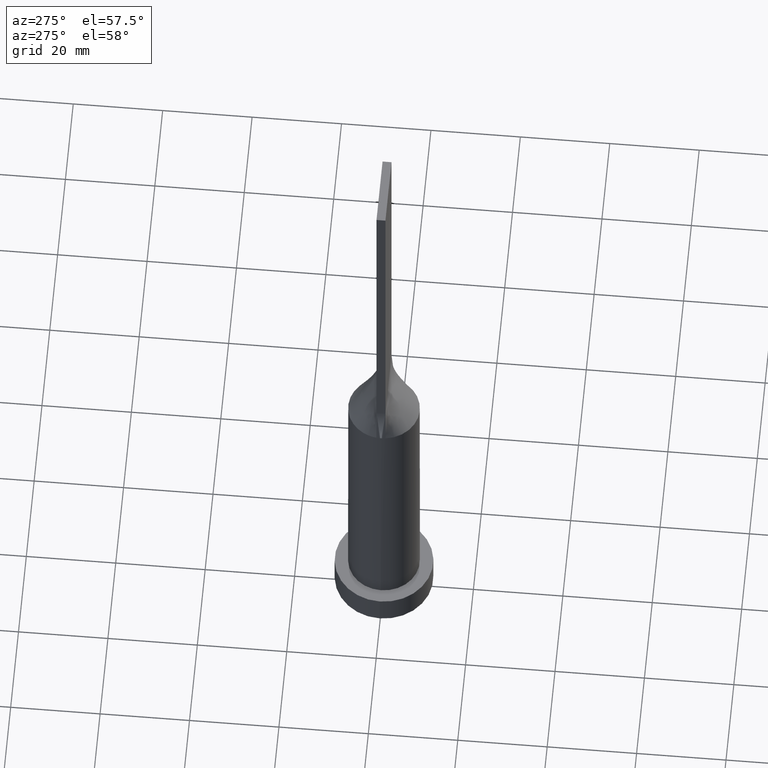
[diagram: clean part render]
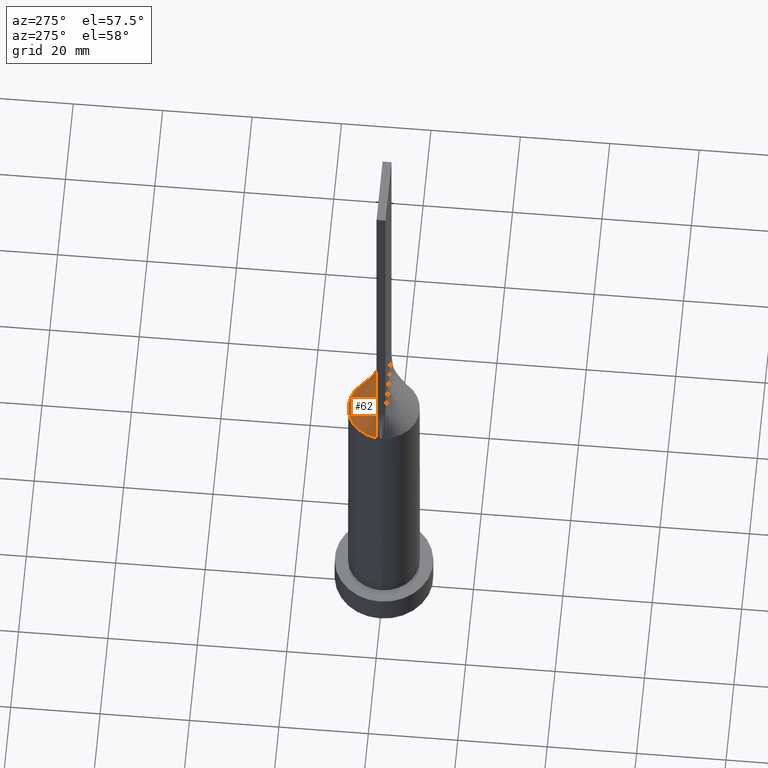
[diagram: same view with one face highlighted and labeled with its STEP entity id]
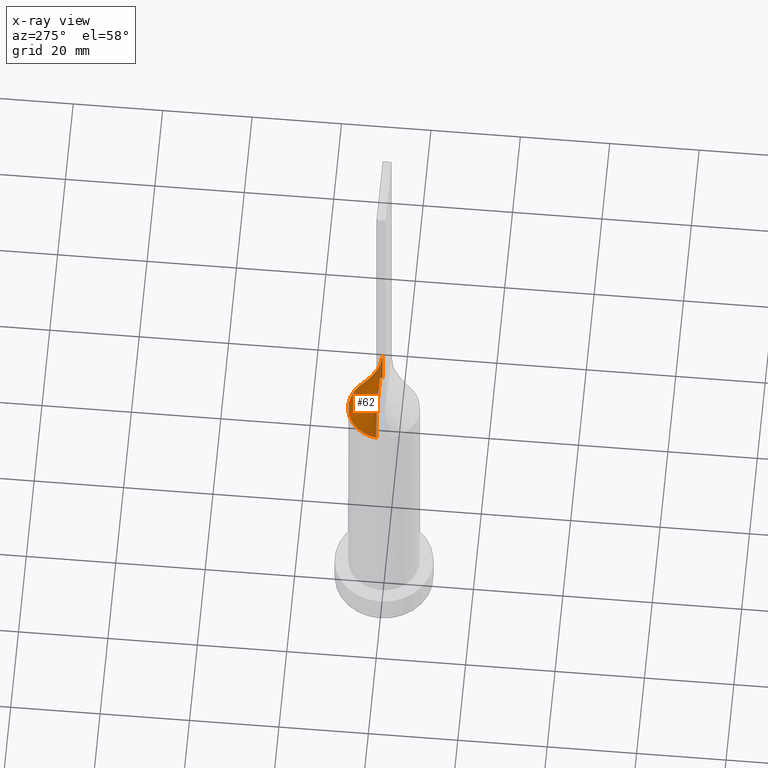
[diagram: x-ray of the same camera — body ghosted, the highlighted face saturated]
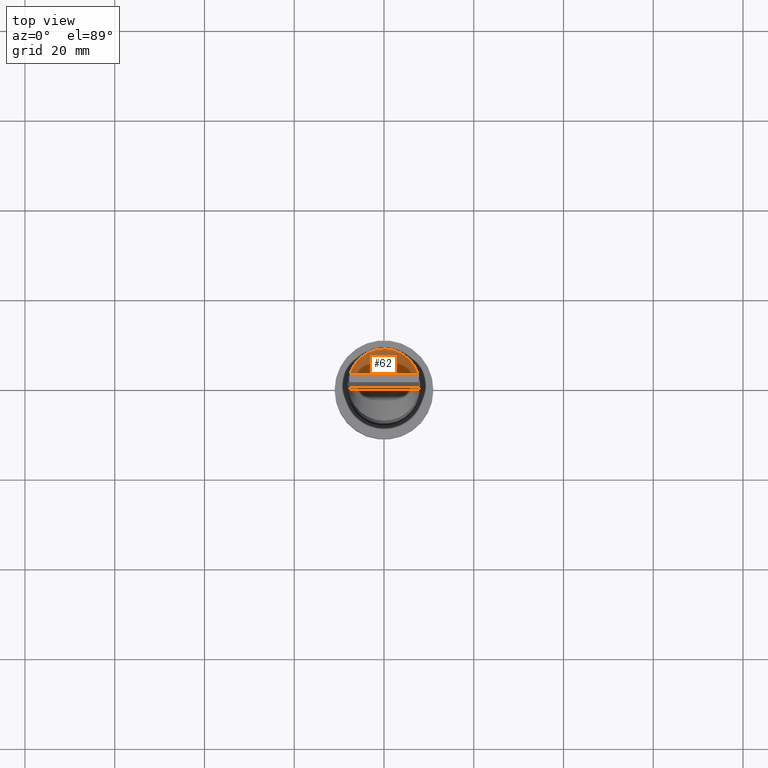
[diagram: same view with one face highlighted and labeled with its STEP entity id]
A machine part, auxiliary view. The second image highlights one B-rep face of the part: STEP entity #62.
The next image is the same camera in x-ray: the body ghosted, the highlighted face saturated — about 6% of this face is hidden behind the body in this view.
A second angle (top view) of the same face is appended — the face is thin or edge-on in the first view.
In plain terms, the highlighted face is a freeform B-spline surface patch.
Its self-contained STEP definition (entity closure, byte-faithful):
#4 = CARTESIAN_POINT ( 'NONE',  ( 7.104166666666666963, 1.000000000000000000, 79.99999999999998579 ) ) ;
#6 = ORIENTED_EDGE ( 'NONE', *, *, #456, .T. ) ;
#9 = CARTESIAN_POINT ( 'NONE',  ( -0.5861720261543129640, 7.999999999999998224, 69.99999999999998579 ) ) ;
#12 = CARTESIAN_POINT ( 'NONE',  ( -7.849610172922081297, 1.679519592204999023, 70.00000000000000000 ) ) ;
#15 = CARTESIAN_POINT ( 'NONE',  ( 2.847317194822259534, 7.497028652483948008, 70.00000000000000000 ) ) ;
#16 = ORIENTED_EDGE ( 'NONE', *, *, #266, .F. ) ;
#18 = CARTESIAN_POINT ( 'NONE',  ( 7.192469010134847629, 3.526369025759696907, 70.00000000000000000 ) ) ;
#22 = CARTESIAN_POINT ( 'NONE',  ( 6.994548530637815453, 3.908833842696238570, 70.00000000000002842 ) ) ;
#45 = EDGE_CURVE ( 'NONE', #508, #52, #146, .T. ) ;
#52 = VERTEX_POINT ( 'NONE', #310 ) ;
#54 = CARTESIAN_POINT ( 'NONE',  ( -3.552083333333332593, 1.000000000000000000, 80.00000000000001421 ) ) ;
#56 = CARTESIAN_POINT ( 'NONE',  ( -3.862537548001455878, 7.028047916340264045, 70.00000000000000000 ) ) ;
#60 = CARTESIAN_POINT ( 'NONE',  ( 3.229166666666668295, 1.000000000000000000, 80.00000000000001421 ) ) ;
#62 = ADVANCED_FACE ( 'NONE', ( #249 ), #152, .T. ) ;
#65 = CARTESIAN_POINT ( 'NONE',  ( -0.3229166666666646868, 1.000000000000000000, 79.99999999999998579 ) ) ;
#66 = LINE ( 'NONE', #219, #408 ) ;
#67 = CARTESIAN_POINT ( 'NONE',  ( 4.333237558274722900, 6.745559271922132893, 70.00000000000001421 ) ) ;
#77 = CARTESIAN_POINT ( 'NONE',  ( -6.226863775955933100, 5.046530946333157353, 70.00000000000001421 ) ) ;
#78 = CARTESIAN_POINT ( 'NONE',  ( -7.934264564332944580, 1.023776086464161406, 70.00000000000000000 ) ) ;
#96 = EDGE_CURVE ( 'NONE', #640, #596, #499, .T. ) ;
#98 = CARTESIAN_POINT ( 'NONE',  ( -2.302877821226935851, 7.683241396761610886, 70.00000000000001421 ) ) ;
#101 = CARTESIAN_POINT ( 'NONE',  ( 7.849610172922079521, 1.679519592204998801, 70.00000000000000000 ) ) ;
#104 = CARTESIAN_POINT ( 'NONE',  ( 6.226863775955932212, 5.046530946333158241, 70.00000000000002842 ) ) ;
#108 = CARTESIAN_POINT ( 'NONE',  ( -4.520833333333332149, 1.000000000000000000, 80.00000000000001421 ) ) ;
#117 = CARTESIAN_POINT ( 'NONE',  ( 7.934252830235720033, 1.023774570959714802, 70.00000000000000000 ) ) ;
#119 = ORIENTED_EDGE ( 'NONE', *, *, #45, .F. ) ;
#121 = CARTESIAN_POINT ( 'NONE',  ( -2.302877821226935851, 7.683241396761610886, 70.00000000000001421 ) ) ;
#146 = LINE ( 'NONE', #388, #347 ) ;
#148 = DIRECTION ( 'NONE',  ( -0.01841911599500831165, -0.002376660128388051550, 0.9998275289531671772 ) ) ;
#150 = CARTESIAN_POINT ( 'NONE',  ( 2.847317194822259534, 7.497028652483948008, 70.00000000000000000 ) ) ;
#152 = B_SPLINE_SURFACE_WITH_KNOTS ( 'NONE', 3, 1, ( 
 ( #510, #170 ),
 ( #101, #4 ),
 ( #256, #602 ),
 ( #599, #448 ),
 ( #493, #412 ),
 ( #203, #252 ),
 ( #104, #399 ),
 ( #306, #587 ),
 ( #500, #60 ),
 ( #67, #403 ),
 ( #544, #453 ),
 ( #150, #450 ),
 ( #211, #407 ),
 ( #641, #505 ),
 ( #346, #594 ),
 ( #9, #65 ),
 ( #161, #496 ),
 ( #98, #353 ),
 ( #547, #638 ),
 ( #56, #301 ),
 ( #591, #320 ),
 ( #361, #214 ),
 ( #540, #54 ),
 ( #166, #356 ),
 ( #550, #108 ),
 ( #314, #556 ),
 ( #207, #262 ),
 ( #156, #458 ),
 ( #12, #216 ),
 ( #350, #415 ) ),
 .UNSPECIFIED., .F., .F., .F.,
 ( 4, 2, 2, 2, 2, 2, 2, 2, 2, 2, 2, 2, 2, 2, 4 ),
 ( 2, 2 ),
 ( 0.000000000000000000, 0.1250000000000000000, 0.1875000000000000000, 0.2500000000000000000, 0.3125000000000000000, 0.3750000000000000000, 0.4375000000000000000, 0.5000000000000000000, 0.5625000000000000000, 0.6250000000000000000, 0.6875000000000000000, 0.7500000000000000000, 0.8125000000000000000, 0.8750000000000000000, 1.000000000000000000 ),
 ( 0.000000000000000000, 1.000000000000000000 ),
 .UNSPECIFIED. ) ;
#156 = CARTESIAN_POINT ( 'NONE',  ( -7.675166908885236339, 2.399868494543667907, 70.00000000000000000 ) ) ;
#161 = CARTESIAN_POINT ( 'NONE',  ( -1.172177046651856402, 7.934824862069282503, 70.00000000000002842 ) ) ;
#166 = CARTESIAN_POINT ( 'NONE',  ( -6.226863775955933100, 5.046530946333157353, 70.00000000000001421 ) ) ;
#170 = CARTESIAN_POINT ( 'NONE',  ( 7.750000000000000000, 1.000000000000000000, 80.00000000000000000 ) ) ;
#174 = CARTESIAN_POINT ( 'NONE',  ( 5.562660223239392465, 5.770452176164421410, 70.00000000000001421 ) ) ;
#183 = CARTESIAN_POINT ( 'NONE',  ( -5.562660223239390689, 5.770452176164420521, 70.00000000000002842 ) ) ;
#203 = CARTESIAN_POINT ( 'NONE',  ( 6.511821874825409751, 4.668925682402791821, 70.00000000000001421 ) ) ;
#206 = EDGE_LOOP ( 'NONE', ( #324, #6, #119, #16 ) ) ;
#207 = CARTESIAN_POINT ( 'NONE',  ( -7.192469010134845853, 3.526369025759696019, 69.99999999999998579 ) ) ;
#211 = CARTESIAN_POINT ( 'NONE',  ( 2.302877821226935406, 7.683241396761612663, 70.00000000000002842 ) ) ;
#214 = CARTESIAN_POINT ( 'NONE',  ( -3.229166666666665186, 1.000000000000000000, 80.00000000000001421 ) ) ;
#216 = CARTESIAN_POINT ( 'NONE',  ( -7.104166666666667851, 1.000000000000000000, 80.00000000000001421 ) ) ;
#219 = CARTESIAN_POINT ( 'NONE',  ( -7.842111466536100473, 1.011885350520786098, 75.00000000000001421 ) ) ;
#220 = CARTESIAN_POINT ( 'NONE',  ( -0.5861720261543129640, 7.999999999999998224, 69.99999999999998579 ) ) ;
#224 = CARTESIAN_POINT ( 'NONE',  ( 6.511821874825409751, 4.668925682402791821, 70.00000000000001421 ) ) ;
#227 = CARTESIAN_POINT ( 'NONE',  ( 2.302877821226935406, 7.683241396761612663, 70.00000000000002842 ) ) ;
#231 = CARTESIAN_POINT ( 'NONE',  ( 4.333237558274722900, 6.745559271922132893, 70.00000000000001421 ) ) ;
#238 = CARTESIAN_POINT ( 'NONE',  ( 7.934252830235720033, 1.023774570959714802, 70.00000000000000000 ) ) ;
#242 = DIRECTION ( 'NONE',  ( -1.000000000000000000, -0.000000000000000000, -0.000000000000000000 ) ) ;
#249 = FACE_OUTER_BOUND ( 'NONE', #206, .T. ) ;
#252 = CARTESIAN_POINT ( 'NONE',  ( 4.520833333333334814, 1.000000000000000000, 80.00000000000001421 ) ) ;
#256 = CARTESIAN_POINT ( 'NONE',  ( 7.675166908885234562, 2.399868494543665243, 69.99999999999997158 ) ) ;
#262 = CARTESIAN_POINT ( 'NONE',  ( -5.489583333333333925, 1.000000000000000000, 80.00000000000001421 ) ) ;
#266 = EDGE_CURVE ( 'NONE', #640, #508, #439, .T. ) ;
#270 = CARTESIAN_POINT ( 'NONE',  ( 7.849610172922079521, 1.679519592204998801, 70.00000000000000000 ) ) ;
#278 = CARTESIAN_POINT ( 'NONE',  ( -5.183259239191613688, 6.116644610143057825, 69.99999999999998579 ) ) ;
#301 = CARTESIAN_POINT ( 'NONE',  ( -2.260416666666664742, 1.000000000000000000, 79.99999999999998579 ) ) ;
#306 = CARTESIAN_POINT ( 'NONE',  ( 5.562660223239392465, 5.770452176164421410, 70.00000000000001421 ) ) ;
#310 = CARTESIAN_POINT ( 'NONE',  ( -7.750000000000000000, 1.000000000000000000, 80.00000000000000000 ) ) ;
#314 = CARTESIAN_POINT ( 'NONE',  ( -6.994548530637814565, 3.908833842696238570, 70.00000000000001421 ) ) ;
#320 = CARTESIAN_POINT ( 'NONE',  ( -2.583333333333331705, 1.000000000000000000, 80.00000000000000000 ) ) ;
#324 = ORIENTED_EDGE ( 'NONE', *, *, #96, .T. ) ;
#326 = CARTESIAN_POINT ( 'NONE',  ( -1.172177046651856402, 7.934824862069282503, 70.00000000000002842 ) ) ;
#328 = CARTESIAN_POINT ( 'NONE',  ( 0.5861720261543130750, 7.999999999999998224, 70.00000000000001421 ) ) ;
#346 = CARTESIAN_POINT ( 'NONE',  ( 0.5861720261543130750, 7.999999999999998224, 70.00000000000001421 ) ) ;
#347 = VECTOR ( 'NONE', #242, 1000.000000000000000 ) ;
#350 = CARTESIAN_POINT ( 'NONE',  ( -7.934222933072200945, 1.023770701041572195, 70.00000000000000000 ) ) ;
#353 = CARTESIAN_POINT ( 'NONE',  ( -1.291666666666664742, 1.000000000000000000, 79.99999999999998579 ) ) ;
#356 = CARTESIAN_POINT ( 'NONE',  ( -4.197916666666666075, 1.000000000000000000, 80.00000000000001421 ) ) ;
#361 = CARTESIAN_POINT ( 'NONE',  ( -5.183259239191613688, 6.116644610143057825, 69.99999999999998579 ) ) ;
#362 = VECTOR ( 'NONE', #148, 1000.000000000000114 ) ;
#367 = CARTESIAN_POINT ( 'NONE',  ( -7.934264564332944580, 1.023776086464161406, 70.00000000000000000 ) ) ;
#369 = CARTESIAN_POINT ( 'NONE',  ( -7.675166908885236339, 2.399868494543667907, 70.00000000000000000 ) ) ;
#373 = CARTESIAN_POINT ( 'NONE',  ( 6.226863775955932212, 5.046530946333158241, 70.00000000000002842 ) ) ;
#376 = CARTESIAN_POINT ( 'NONE',  ( -7.849610172922081297, 1.679519592204999023, 70.00000000000000000 ) ) ;
#388 = CARTESIAN_POINT ( 'NONE',  ( -7.750000000000000000, 1.000000000000000000, 80.00000000000000000 ) ) ;
#399 = CARTESIAN_POINT ( 'NONE',  ( 4.197916666666668739, 1.000000000000000000, 80.00000000000001421 ) ) ;
#403 = CARTESIAN_POINT ( 'NONE',  ( 2.583333333333335258, 1.000000000000000000, 80.00000000000000000 ) ) ;
#407 = CARTESIAN_POINT ( 'NONE',  ( 1.291666666666668739, 1.000000000000000000, 79.99999999999998579 ) ) ;
#408 = VECTOR ( 'NONE', #611, 1000.000000000000114 ) ;
#412 = CARTESIAN_POINT ( 'NONE',  ( 5.166666666666667851, 1.000000000000000000, 80.00000000000000000 ) ) ;
#415 = CARTESIAN_POINT ( 'NONE',  ( -7.750000000000000000, 1.000000000000000000, 80.00000000000000000 ) ) ;
#420 = CARTESIAN_POINT ( 'NONE',  ( -2.847317194822260422, 7.497028652483947120, 70.00000000000001421 ) ) ;
#424 = CARTESIAN_POINT ( 'NONE',  ( 5.183259239191615464, 6.116644610143058713, 70.00000000000001421 ) ) ;
#427 = CARTESIAN_POINT ( 'NONE',  ( -3.862537548001455878, 7.028047916340264045, 70.00000000000000000 ) ) ;
#439 = LINE ( 'NONE', #634, #362 ) ;
#448 = CARTESIAN_POINT ( 'NONE',  ( 5.489583333333333037, 1.000000000000000000, 79.99999999999998579 ) ) ;
#450 = CARTESIAN_POINT ( 'NONE',  ( 1.614583333333335480, 1.000000000000000000, 79.99999999999998579 ) ) ;
#453 = CARTESIAN_POINT ( 'NONE',  ( 2.260416666666668295, 1.000000000000000000, 80.00000000000000000 ) ) ;
#456 = EDGE_CURVE ( 'NONE', #596, #52, #66, .T. ) ;
#458 = CARTESIAN_POINT ( 'NONE',  ( -6.458333333333333925, 1.000000000000000000, 80.00000000000001421 ) ) ;
#465 = CARTESIAN_POINT ( 'NONE',  ( 7.675166908885234562, 2.399868494543665243, 69.99999999999997158 ) ) ;
#470 = CARTESIAN_POINT ( 'NONE',  ( -7.192469010134845853, 3.526369025759696019, 69.99999999999998579 ) ) ;
#493 = CARTESIAN_POINT ( 'NONE',  ( 6.994548530637815453, 3.908833842696238570, 70.00000000000002842 ) ) ;
#496 = CARTESIAN_POINT ( 'NONE',  ( -0.6458333333333313719, 1.000000000000000000, 79.99999999999998579 ) ) ;
#499 = B_SPLINE_CURVE_WITH_KNOTS ( 'NONE', 3,
 ( #117, #270, #465, #18, #22, #224, #373, #174, #424, #231, #560, #15, #227, #565, #328, #220, #326, #121, #420, #427, #519, #278, #183, #77, #563, #617, #470, #369, #376, #367 ),
 .UNSPECIFIED., .F., .F.,
 ( 4, 2, 2, 2, 2, 2, 2, 2, 2, 2, 2, 2, 2, 2, 4 ),
 ( 0.000000000000000000, 0.1250000000000000000, 0.1875000000000000000, 0.2500000000000000000, 0.3125000000000000000, 0.3750000000000000000, 0.4375000000000000000, 0.5000000000000000000, 0.5625000000000000000, 0.6250000000000000000, 0.6875000000000000000, 0.7500000000000000000, 0.8125000000000000000, 0.8750000000000000000, 1.000000000000000000 ),
 .UNSPECIFIED. ) ;
#500 = CARTESIAN_POINT ( 'NONE',  ( 5.183259239191615464, 6.116644610143058713, 70.00000000000001421 ) ) ;
#505 = CARTESIAN_POINT ( 'NONE',  ( 0.6458333333333352577, 1.000000000000000000, 79.99999999999998579 ) ) ;
#508 = VERTEX_POINT ( 'NONE', #555 ) ;
#510 = CARTESIAN_POINT ( 'NONE',  ( 7.934222933072200945, 1.023770701041573972, 70.00000000000000000 ) ) ;
#519 = CARTESIAN_POINT ( 'NONE',  ( -4.333237558274722900, 6.745559271922134670, 70.00000000000001421 ) ) ;
#540 = CARTESIAN_POINT ( 'NONE',  ( -5.562660223239390689, 5.770452176164420521, 70.00000000000002842 ) ) ;
#544 = CARTESIAN_POINT ( 'NONE',  ( 3.862537548001455878, 7.028047916340264933, 70.00000000000001421 ) ) ;
#547 = CARTESIAN_POINT ( 'NONE',  ( -2.847317194822260422, 7.497028652483947120, 70.00000000000001421 ) ) ;
#550 = CARTESIAN_POINT ( 'NONE',  ( -6.511821874825407974, 4.668925682402791821, 70.00000000000004263 ) ) ;
#555 = CARTESIAN_POINT ( 'NONE',  ( 7.750000000000000000, 1.000000000000000000, 80.00000000000000000 ) ) ;
#556 = CARTESIAN_POINT ( 'NONE',  ( -5.166666666666666963, 1.000000000000000000, 80.00000000000001421 ) ) ;
#560 = CARTESIAN_POINT ( 'NONE',  ( 3.862537548001455878, 7.028047916340264933, 70.00000000000001421 ) ) ;
#563 = CARTESIAN_POINT ( 'NONE',  ( -6.511821874825407974, 4.668925682402791821, 70.00000000000004263 ) ) ;
#565 = CARTESIAN_POINT ( 'NONE',  ( 1.172177046651856624, 7.934824862069278950, 70.00000000000001421 ) ) ;
#587 = CARTESIAN_POINT ( 'NONE',  ( 3.552083333333335258, 1.000000000000000000, 80.00000000000001421 ) ) ;
#591 = CARTESIAN_POINT ( 'NONE',  ( -4.333237558274722900, 6.745559271922134670, 70.00000000000001421 ) ) ;
#594 = CARTESIAN_POINT ( 'NONE',  ( 0.3229166666666686281, 1.000000000000000000, 79.99999999999998579 ) ) ;
#596 = VERTEX_POINT ( 'NONE', #78 ) ;
#599 = CARTESIAN_POINT ( 'NONE',  ( 7.192469010134847629, 3.526369025759696907, 70.00000000000000000 ) ) ;
#602 = CARTESIAN_POINT ( 'NONE',  ( 6.458333333333333037, 1.000000000000000000, 79.99999999999998579 ) ) ;
#611 = DIRECTION ( 'NONE',  ( 0.01841911599500831165, -0.002376660128387965247, 0.9998275289531671772 ) ) ;
#617 = CARTESIAN_POINT ( 'NONE',  ( -6.994548530637814565, 3.908833842696238570, 70.00000000000001421 ) ) ;
#634 = CARTESIAN_POINT ( 'NONE',  ( 7.842111466536100473, 1.011885350520786542, 75.00000000000001421 ) ) ;
#638 = CARTESIAN_POINT ( 'NONE',  ( -1.614583333333331483, 1.000000000000000000, 79.99999999999998579 ) ) ;
#640 = VERTEX_POINT ( 'NONE', #238 ) ;
#641 = CARTESIAN_POINT ( 'NONE',  ( 1.172177046651856624, 7.934824862069278950, 70.00000000000001421 ) ) ;